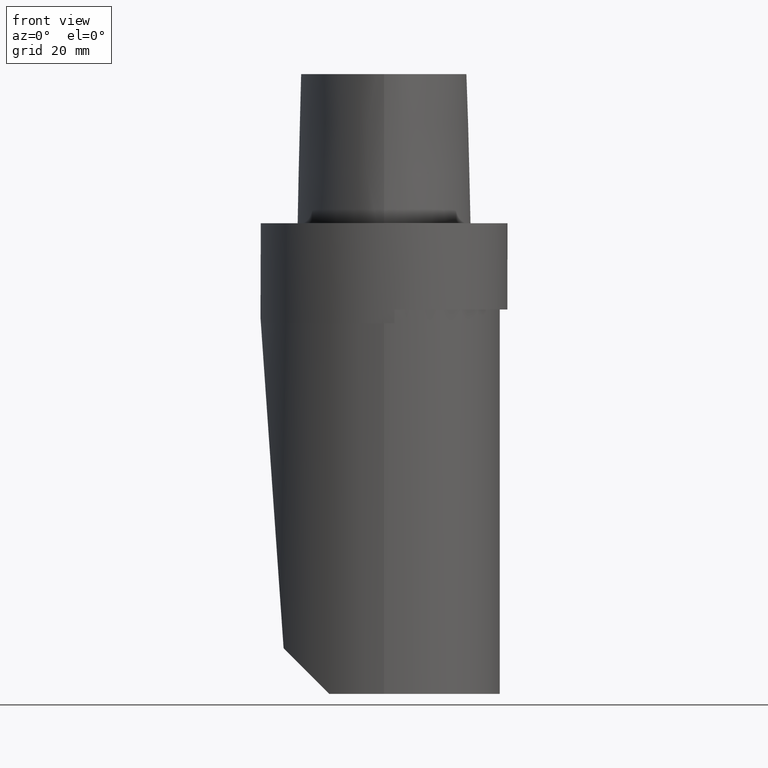
[diagram: clean part render]
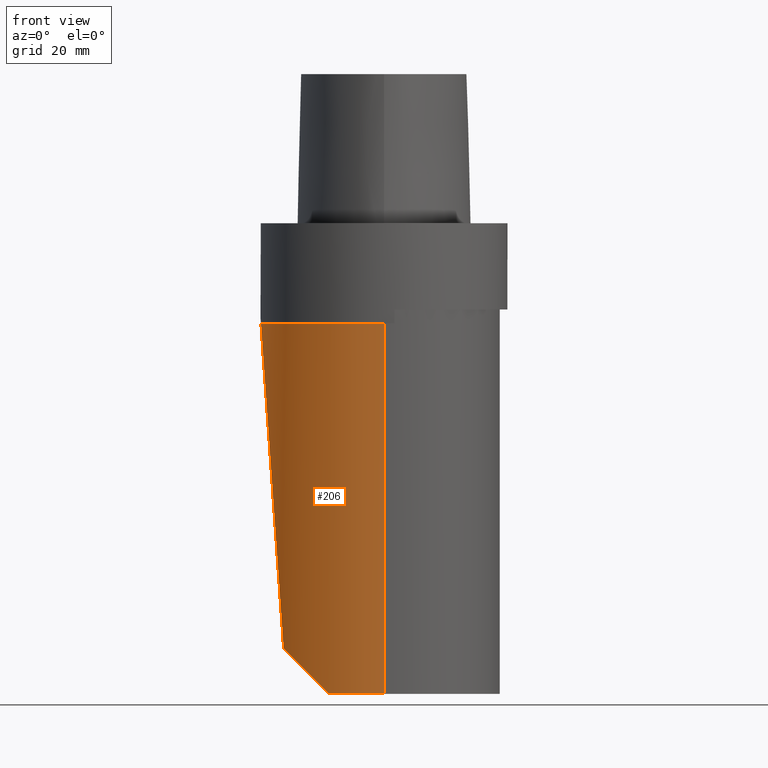
[diagram: same view with one face highlighted and labeled with its STEP entity id]
A machine part, front view. The second image highlights one B-rep face of the part: STEP entity #206.
In plain terms, the highlighted cylindrical surface (partial cylindrical patch) has radius 31.5 mm, axis along (-0, -0, -1).
Its self-contained STEP definition (entity closure, byte-faithful):
#173=EDGE_CURVE('240[2]',#420,#421,#422,.T.);
#200=EDGE_CURVE('240[2]',#389,#378,#459,.T.);
#206=ADVANCED_FACE('240[2]',(#467),#468,.T.);
#279=EDGE_CURVE('240[2]',#411,#421,#555,.T.);
#293=EDGE_CURVE('240[2]',#420,#378,#569,.T.);
#299=EDGE_CURVE('240[2]',#389,#411,#575,.T.);
#378=VERTEX_POINT('',#723);
#389=VERTEX_POINT('',#752);
#411=VERTEX_POINT('',#807);
#420=VERTEX_POINT('',#821);
#421=VERTEX_POINT('',#822);
#422=CIRCLE('',#823,31.4999999999992);
#459=CIRCLE('',#882,31.4999999999992);
#467=FACE_OUTER_BOUND('',#892,.T.);
#468=CYLINDRICAL_SURFACE('',#893,31.4999999999992);
#555=ELLIPSE('',#1210,44.5477272147453,31.4999999999992);
#569=LINE('',#1235,#1236);
#575=ELLIPSE('',#1255,451.570991325388,31.4999999999992);
#723=CARTESIAN_POINT('',(-7.34876309957923E-015,-31.4999999999999,-25.513368806563));
#752=CARTESIAN_POINT('',(-31.3941749316576,-2.57987991202793,-25.5133688065619));
#807=CARTESIAN_POINT('',(-25.5980298198127,-18.3573110597378,-108.402105626526));
#821=CARTESIAN_POINT('',(-1.31344006113798E-014,-31.4999999999999,-119.999999822604));
#822=CARTESIAN_POINT('',(-14.0001356237299,-28.2178348304248,-119.999999822605));
#823=AXIS2_PLACEMENT_3D('',#1342,#1343,#1344);
#882=AXIS2_PLACEMENT_3D('',#1398,#1399,#1400);
#892=EDGE_LOOP('',(#1413,#1414,#1415,#1416,#1417));
#893=AXIS2_PLACEMENT_3D('',#1418,#1419,#1420);
#1210=AXIS2_PLACEMENT_3D('',#1536,#1537,#1538);
#1235=CARTESIAN_POINT('',(-2.27564505118782E-014,-31.4999999999999,-277.139999816032));
#1236=VECTOR('',#1549,1.0);
#1255=AXIS2_PLACEMENT_3D('',#1551,#1552,#1553);
#1342=CARTESIAN_POINT('',(-9.1684258255695E-013,1.98951966012828E-013,-119.999999822605));
#1343=DIRECTION('',(-6.1232339957368E-017,-2.64883885150619E-015,-1.0));
#1344=DIRECTION('',(1.0,-2.44929359829471E-016,-6.12323399573673E-017));
#1398=CARTESIAN_POINT('',(-9.11056945045149E-013,1.98951966012828E-013,-25.5133688065619));
#1399=DIRECTION('',(6.12323399573677E-017,1.22464679914735E-016,1.0));
#1400=DIRECTION('',(1.0,-2.44929359829471E-016,-6.12323399573677E-017));
#1413=ORIENTED_EDGE('',*,*,#173,.F.);
#1414=ORIENTED_EDGE('',*,*,#293,.T.);
#1415=ORIENTED_EDGE('',*,*,#200,.F.);
#1416=ORIENTED_EDGE('',*,*,#299,.T.);
#1417=ORIENTED_EDGE('',*,*,#279,.T.);
#1418=CARTESIAN_POINT('',(-9.26464632457448E-013,1.70530256582424E-013,-277.139999816032));
#1419=DIRECTION('',(-6.12323399573677E-017,-1.22464679914735E-016,-1.0));
#1420=DIRECTION('',(1.0,-2.44929359829471E-016,-6.12323399573677E-017));
#1536=CARTESIAN_POINT('',(-9.17699843620911E-013,1.70530256582424E-013,-134.00013544633));
#1537=DIRECTION('',(0.70710678118645,2.37458783025468E-029,0.707106781186645));
#1538=DIRECTION('',(0.707106781186645,-2.5978681687066E-016,-0.70710678118645));
#1549=DIRECTION('',(6.12323399573677E-017,1.22464679914735E-016,1.0));
#1551=CARTESIAN_POINT('',(-9.38547670543248E-013,1.4210854715202E-013,-474.470986909));
#1552=DIRECTION('',(0.997564050259824,-1.13623657880461E-016,0.0697564737441278));
#1553=DIRECTION('',(0.0697564737441278,-1.39251770567627E-016,-0.997564050259824));